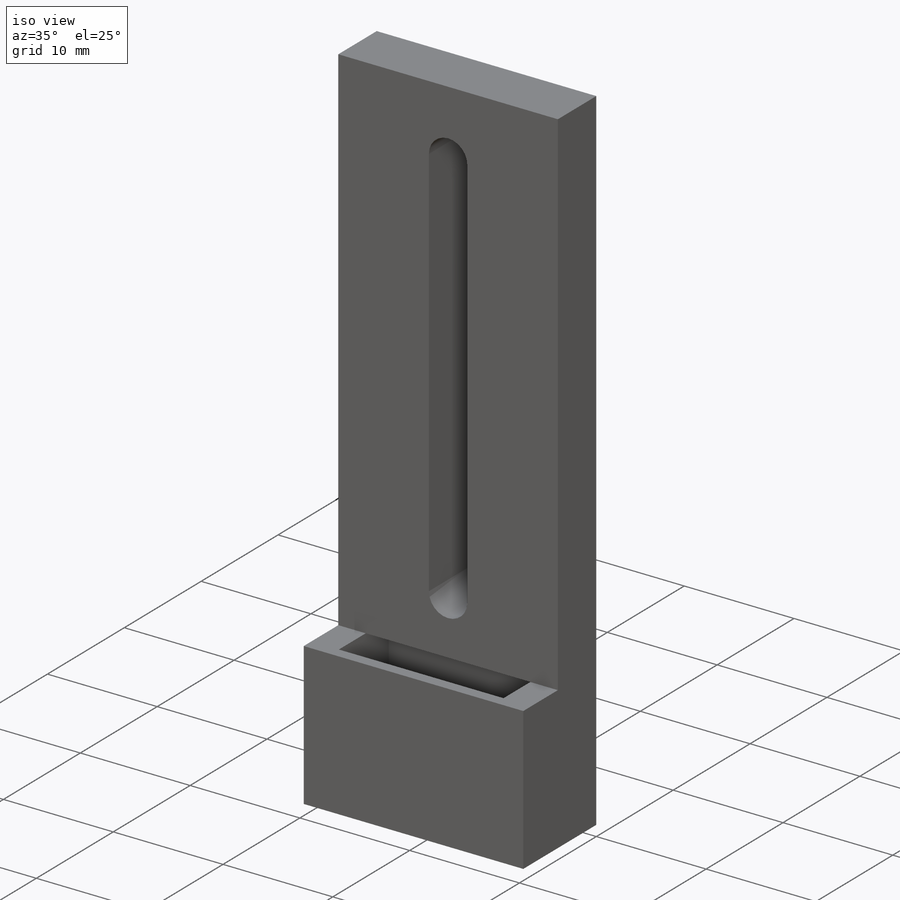
[diagram: iso view]
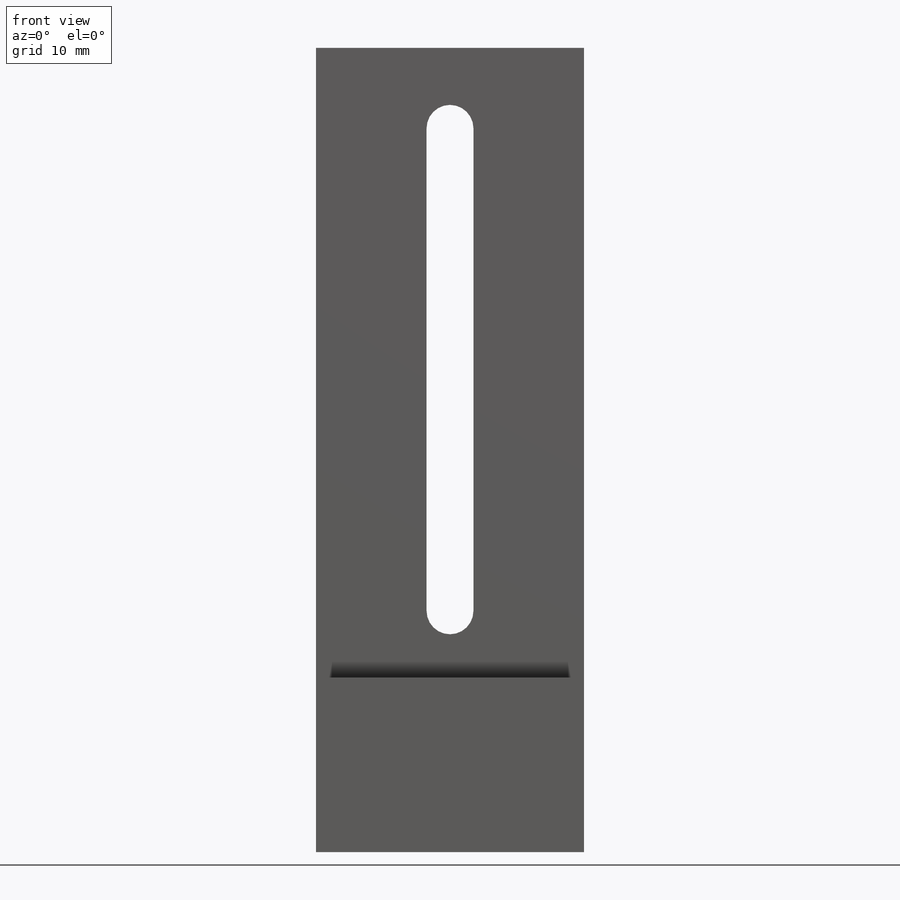
[diagram: front view]
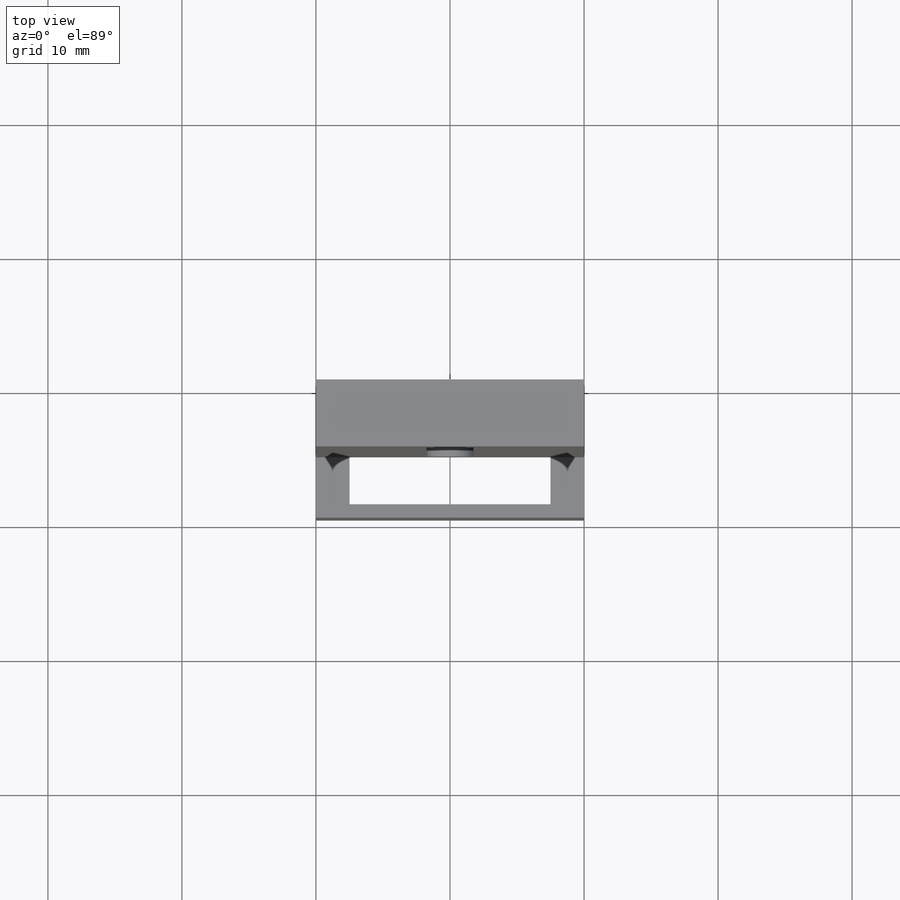
[diagram: top view]
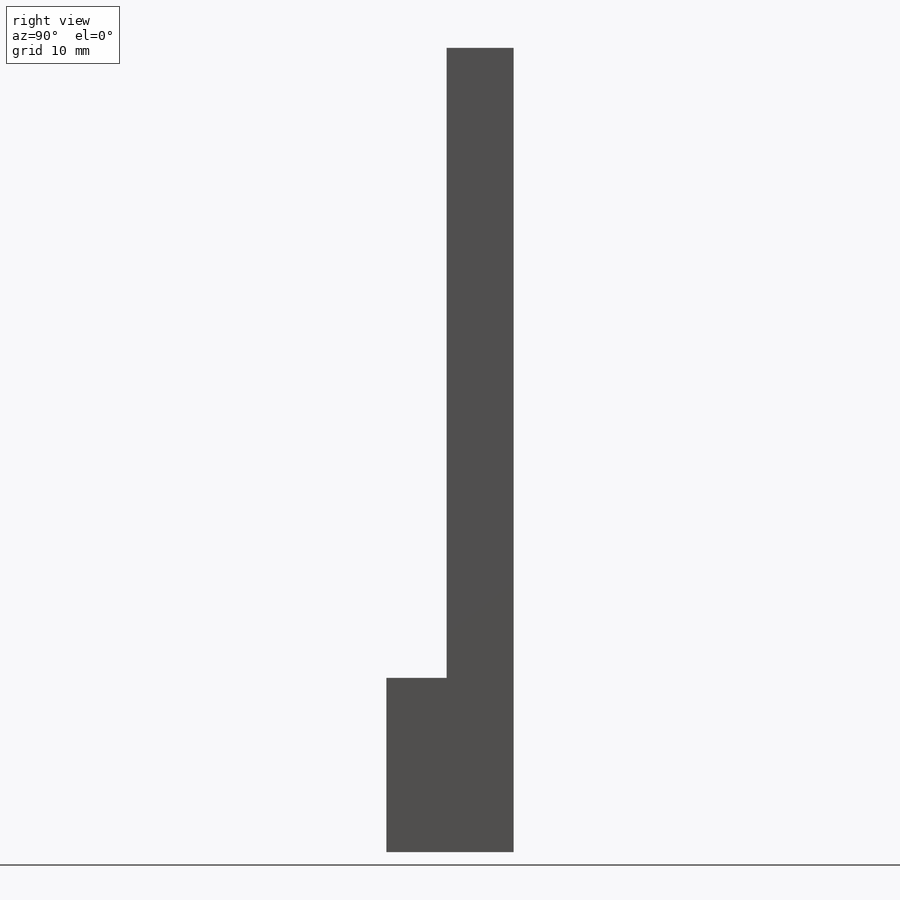
[diagram: right view]
SOLIDWORKS PART (.sldprt)
format: sldprt  version: not decoded by parser v0  size: 158,208 bytes
history: native  units: mm
features: sketch x4, extrude x2, cut_extrude x2, material x1 (+11 scaffold rows collapsed)
feature tree (20):
  scaffold x11  (default folders/planes/origin — collapsed)
  material  "ABS PC"
  sketch  "Sketch1"  dims[c1.D3=~9.35347mm c1.D5=5.5mm c1.D1=60.0mm c1.D2=20.0mm c2.D3=10.0mm c2.D4=7.0mm]
  extrude  "Boss-Extrude1"  Depth=5mm
  sketch  "Sketch2"  dims[D1=13.0mm]
  extrude  "Boss-Extrude2"  Depth=4.5mm
  sketch  "Sketch3"  dims[D1=15.0mm D2=6.5mm D3=2.5mm D4=1.0mm]
  cut_extrude  "Cut-Extrude1"  [1 undecoded]
  sketch  "Sketch4"  dims[D1=3.5mm D2=6.0mm D3=36.0mm D4=10.0mm]
  cut_extrude  "Cut-Extrude2"  Depth=10mm
decode coverage: 7 of 8 modeling features carry decoded parameters
note: ~ marks probable driven/reference dimensions
note: 1 parameter value undecoded
note: suppression state not decoded; provenance and decode notes live in map.json
